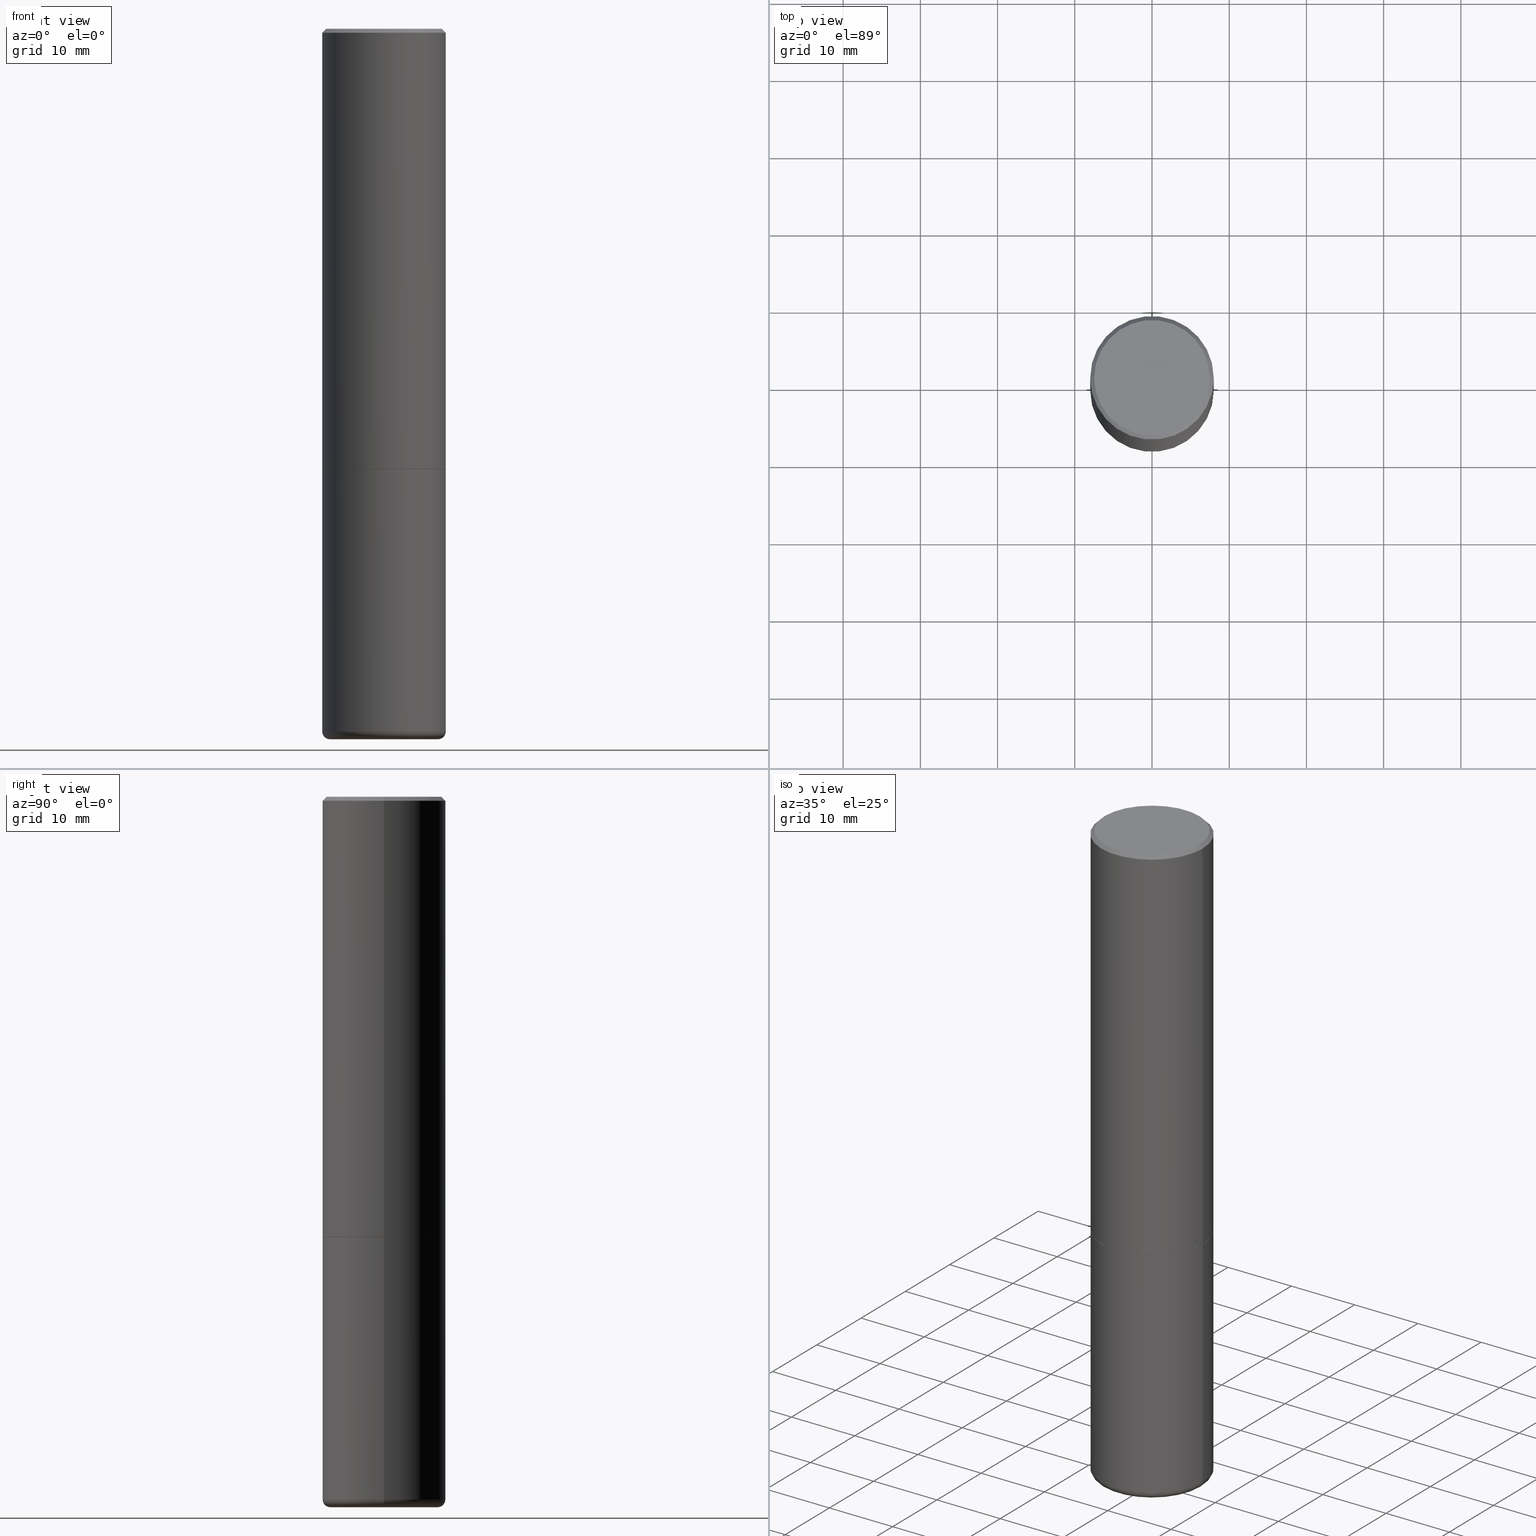
[diagram: canonical four-view strip — front | top / right | iso, engineering-drawing reading convention]
A machine part, canonical four-view strip (front | top / right | iso — engineering-drawing reading convention). The complete STEP part file that produces these views, byte-faithful:
ISO-10303-21;
HEADER;
FILE_DESCRIPTION (( 'STEP AP203' ),
    '1' );
FILE_NAME ('47047.STEP',
    '2024-03-05T14:55:19',
    ( '' ),
    ( '' ),
    'SwSTEP 2.0',
    'SolidWorks 2023',
    '' );
FILE_SCHEMA (( 'CONFIG_CONTROL_DESIGN' ));
ENDSEC;

DATA;
#1 = LOCAL_TIME ( 9, 55, 19.00000000000000000, #413 ) ;
#2 = FACE_OUTER_BOUND ( 'NONE', #357, .T. ) ;
#3 = EDGE_CURVE ( 'NONE', #184, #97, #279, .T. ) ;
#4 = DIRECTION ( 'NONE',  ( -1.000000000000000000, 6.982962677686266711E-15, 0.000000000000000000 ) ) ;
#5 = ADVANCED_FACE ( 'NONE', ( #145 ), #326, .T. ) ;
#6 = DIRECTION ( 'NONE',  ( 2.438088387897960049E-29, -3.491481338843145188E-15, -1.000000000000000000 ) ) ;
#7 = CLOSED_SHELL ( 'NONE', ( #57, #141, #54, #318, #283, #381 ) ) ;
#8 = ORIENTED_EDGE ( 'NONE', *, *, #82, .F. ) ;
#9 = DIRECTION ( 'NONE',  ( 0.000000000000000000, 0.000000000000000000, 1.000000000000000000 ) ) ;
#10 = ORIENTED_EDGE ( 'NONE', *, *, #82, .T. ) ;
#11 = EDGE_CURVE ( 'NONE', #14, #198, #113, .T. ) ;
#12 = ORIENTED_EDGE ( 'NONE', *, *, #188, .F. ) ;
#13 = AXIS2_PLACEMENT_3D ( 'NONE', #319, #157, #249 ) ;
#14 = VERTEX_POINT ( 'NONE', #410 ) ;
#15 = ORIENTED_EDGE ( 'NONE', *, *, #16, .F. ) ;
#16 = EDGE_CURVE ( 'NONE', #102, #393, #250, .T. ) ;
#17 = DIRECTION ( 'NONE',  ( 2.445468806185136597E-29, -3.491481338843145583E-15, -1.000000000000000000 ) ) ;
#18 = VECTOR ( 'NONE', #86, 39.37007874015748143 ) ;
#19 = CIRCLE ( 'NONE', #56, 0.2949499999999998234 ) ;
#20 = DIRECTION ( 'NONE',  ( 1.000000000000000000, -6.982962677686267499E-15, 0.000000000000000000 ) ) ;
#21 = CARTESIAN_POINT ( 'NONE',  ( 0.2949499999999998234, -2.127023677808859286E-15, 1.792775245842319231E-16 ) ) ;
#22 = EDGE_LOOP ( 'NONE', ( #8, #135, #195, #226 ) ) ;
#23 = COORDINATED_UNIVERSAL_TIME_OFFSET ( 5, 0, .BEHIND. ) ;
#24 = DIRECTION ( 'NONE',  ( 1.000000000000000000, -6.982962677686266711E-15, 0.000000000000000000 ) ) ;
#25 = CARTESIAN_POINT ( 'NONE',  ( 5.487632001079445967E-29, -7.834884124364017250E-15, -2.243999999999999773 ) ) ;
#26 = AXIS2_PLACEMENT_3D ( 'NONE', #414, #212, #155 ) ;
#27 = APPROVAL ( #42, 'UNSPECIFIED' ) ;
#28 = MANIFOLD_SOLID_BREP ( 'Body-Move/Copy2[1]', #7 ) ;
#29 = CARTESIAN_POINT ( 'NONE',  ( 5.487632001079445967E-29, -7.834884124364017250E-15, -2.243999999999999773 ) ) ;
#30 = EDGE_CURVE ( 'NONE', #198, #69, #308, .T. ) ;
#31 = CIRCLE ( 'NONE', #266, 0.03940000000000005997 ) ;
#32 = AXIS2_PLACEMENT_3D ( 'NONE', #411, #39, #169 ) ;
#33 = LOCAL_TIME ( 9, 55, 19.00000000000000000, #23 ) ;
#34 = EDGE_CURVE ( 'NONE', #38, #234, #85, .T. ) ;
#35 = DIRECTION ( 'NONE',  ( -2.445468806185136597E-29, 3.491481338843145583E-15, 1.000000000000000000 ) ) ;
#36 = ORIENTED_EDGE ( 'NONE', *, *, #73, .T. ) ;
#37 = TOROIDAL_SURFACE ( 'NONE', #13, 0.2755500000000000171, 0.03940000000000005997 ) ;
#38 = VERTEX_POINT ( 'NONE', #281 ) ;
#39 = DIRECTION ( 'NONE',  ( -2.445468806185136597E-29, 3.491481338843145583E-15, 1.000000000000000000 ) ) ;
#40 = ORIENTED_EDGE ( 'NONE', *, *, #34, .T. ) ;
#41 = ORIENTED_EDGE ( 'NONE', *, *, #396, .T. ) ;
#42 = APPROVAL_STATUS ( 'not_yet_approved' ) ;
#43 = AXIS2_PLACEMENT_3D ( 'NONE', #379, #222, #161 ) ;
#44 = APPROVAL_PERSON_ORGANIZATION ( #405, #219, #296 ) ;
#45 = ORIENTED_EDGE ( 'NONE', *, *, #355, .T. ) ;
#46 = CYLINDRICAL_SURFACE ( 'NONE', #191, 0.3149500000000000077 ) ;
#47 = EDGE_CURVE ( 'NONE', #38, #300, #31, .T. ) ;
#48 = DIRECTION ( 'NONE',  ( 1.000000000000000000, -6.982962677686266711E-15, 0.000000000000000000 ) ) ;
#49 = ORIENTED_EDGE ( 'NONE', *, *, #11, .T. ) ;
#50 = VECTOR ( 'NONE', #93, 39.37007874015748143 ) ;
#51 = DIRECTION ( 'NONE',  ( 2.438088387897960049E-29, -3.491481338843145188E-15, -1.000000000000000000 ) ) ;
#52 = CARTESIAN_POINT ( 'NONE',  ( 0.3149500000000002853, -1.003067673836246727E-14, -2.242999999999999883 ) ) ;
#53 = CARTESIAN_POINT ( 'NONE',  ( 0.3149500000000000077, -1.003416821970130712E-14, -2.243999999999999773 ) ) ;
#54 = ADVANCED_FACE ( 'NONE', ( #277 ), #248, .F. ) ;
#55 = CARTESIAN_POINT ( 'NONE',  ( -0.2949499999999998234, 2.094539655171995318E-15, 1.792775245842027353E-16 ) ) ;
#56 = AXIS2_PLACEMENT_3D ( 'NONE', #330, #170, #297 ) ;
#57 = ADVANCED_FACE ( 'NONE', ( #244 ), #120, .T. ) ;
#58 = CARTESIAN_POINT ( 'NONE',  ( 8.857488016002564476E-29, -1.264614540928987199E-14, -3.621999999999999886 ) ) ;
#59 = AXIS2_PLACEMENT_3D ( 'NONE', #149, #117, #182 ) ;
#60 = CYLINDRICAL_SURFACE ( 'NONE', #112, 0.3149500000000001743 ) ;
#61 = DIRECTION ( 'NONE',  ( -2.445468806185136597E-29, 3.491481338843145583E-15, 1.000000000000000000 ) ) ;
#62 = VERTEX_POINT ( 'NONE', #377 ) ;
#63 = FACE_OUTER_BOUND ( 'NONE', #333, .T. ) ;
#64 = ORIENTED_EDGE ( 'NONE', *, *, #321, .T. ) ;
#65 = PERSON_AND_ORGANIZATION ( #164, #239 ) ;
#66 = AXIS2_PLACEMENT_3D ( 'NONE', #412, #118, #20 ) ;
#67 = FACE_OUTER_BOUND ( 'NONE', #255, .T. ) ;
#68 = ORIENTED_EDGE ( 'NONE', *, *, #16, .T. ) ;
#69 = VERTEX_POINT ( 'NONE', #53 ) ;
#70 = PERSON_AND_ORGANIZATION_ROLE ( 'creator' ) ;
#71 = CARTESIAN_POINT ( 'NONE',  ( 0.3149500000000000077, -1.470786513987673949E-14, -3.582599999999999785 ) ) ;
#72 = ORIENTED_EDGE ( 'NONE', *, *, #278, .F. ) ;
#73 = EDGE_CURVE ( 'NONE', #69, #198, #156, .T. ) ;
#74 = APPLICATION_CONTEXT ( 'configuration controlled 3d designs of mechanical parts and assemblies' ) ;
#75 = CIRCLE ( 'NONE', #282, 0.3149500000000002853 ) ;
#76 = CC_DESIGN_APPROVAL ( #368, ( #124 ) ) ;
#77 = DIRECTION ( 'NONE',  ( 2.438088387897960049E-29, -3.491481338843145188E-15, -1.000000000000000000 ) ) ;
#78 = DESIGN_CONTEXT ( 'detailed design', #213, 'design' ) ;
#79 = DIRECTION ( 'NONE',  ( -2.445468806185136597E-29, 3.491481338843145583E-15, 1.000000000000000000 ) ) ;
#80 = DIRECTION ( 'NONE',  ( -2.445468806185136877E-29, 3.491481338843145188E-15, 1.000000000000000000 ) ) ;
#81 = DIRECTION ( 'NONE',  ( -2.445468806185136597E-29, 3.491481338843145583E-15, 1.000000000000000000 ) ) ;
#82 = EDGE_CURVE ( 'NONE', #234, #14, #176, .T. ) ;
#83 = CARTESIAN_POINT ( 'NONE',  ( 0.000000000000000000, 0.000000000000000000, 0.000000000000000000 ) ) ;
#84 = UNCERTAINTY_MEASURE_WITH_UNIT (LENGTH_MEASURE( 1.000000000000000082E-05 ), #100, 'distance_accuracy_value', 'NONE');
#85 = CIRCLE ( 'NONE', #214, 0.2755500000000000171 ) ;
#86 = DIRECTION ( 'NONE',  ( -0.7071067811865466846, 2.468850131082247989E-15, -0.7071067811865483499 ) ) ;
#87 = APPROVAL_ROLE ( '' ) ;
#88 = CARTESIAN_POINT ( 'NONE',  ( 0.2755500000000000171, -1.443273641037590422E-14, -3.582599999999999785 ) ) ;
#89 = APPROVAL_STATUS ( 'not_yet_approved' ) ;
#90 = CARTESIAN_POINT ( 'NONE',  ( -0.3139500000000000068, -5.598836751096959871E-15, -2.243999999999999773 ) ) ;
#91 = CIRCLE ( 'NONE', #150, 0.3149500000000000077 ) ;
#92 = CONICAL_SURFACE ( 'NONE', #247, 0.3139500000000000068, 0.7853981633975507526 ) ;
#93 = DIRECTION ( 'NONE',  ( -2.445468806185136877E-29, 3.491481338843145188E-15, 1.000000000000000000 ) ) ;
#94 = DIRECTION ( 'NONE',  ( -2.445468806185136597E-29, 3.491481338843145583E-15, 1.000000000000000000 ) ) ;
#95 =( GEOMETRIC_REPRESENTATION_CONTEXT ( 3 ) GLOBAL_UNCERTAINTY_ASSIGNED_CONTEXT ( ( #84 ) ) GLOBAL_UNIT_ASSIGNED_CONTEXT ( ( #100, #400, #267 ) ) REPRESENTATION_CONTEXT ( 'NONE', 'WORKASPACE' ) );
#96 = DIRECTION ( 'NONE',  ( -2.445468806185136597E-29, 3.491481338843145583E-15, 1.000000000000000000 ) ) ;
#97 = VERTEX_POINT ( 'NONE', #367 ) ;
#98 = CARTESIAN_POINT ( 'NONE',  ( 8.761136545038868759E-29, -1.250858104453945120E-14, -3.582599999999999785 ) ) ;
#99 = ORIENTED_EDGE ( 'NONE', *, *, #73, .F. ) ;
#100 =( CONVERSION_BASED_UNIT ( 'INCH', #232 ) LENGTH_UNIT ( ) NAMED_UNIT ( #385 ) );
#101 = CARTESIAN_POINT ( 'NONE',  ( -0.2755500000000000171, -1.047948579958296492E-14, -3.621999999999999886 ) ) ;
#102 = VERTEX_POINT ( 'NONE', #52 ) ;
#103 = APPROVAL_STATUS ( 'not_yet_approved' ) ;
#104 = AXIS2_PLACEMENT_3D ( 'NONE', #83, #246, #343 ) ;
#105 = CC_DESIGN_PERSON_AND_ORGANIZATION_ASSIGNMENT ( #238, #207, ( #124 ) ) ;
#106 = EDGE_LOOP ( 'NONE', ( #262, #189, #45, #165 ) ) ;
#107 = ADVANCED_FACE ( 'NONE', ( #187 ), #274, .F. ) ;
#108 = EDGE_LOOP ( 'NONE', ( #41, #49, #99, #372 ) ) ;
#109 = PERSON_AND_ORGANIZATION ( #164, #239 ) ;
#110 = CARTESIAN_POINT ( 'NONE',  ( -0.3139500000000000068, -5.604135205445183851E-15, -2.243999999999999773 ) ) ;
#111 = CARTESIAN_POINT ( 'NONE',  ( 5.487632001079445967E-29, -7.834884124364017250E-15, -2.243999999999999773 ) ) ;
#112 = AXIS2_PLACEMENT_3D ( 'NONE', #228, #61, #197 ) ;
#113 = LINE ( 'NONE', #186, #148 ) ;
#114 = CC_DESIGN_PERSON_AND_ORGANIZATION_ASSIGNMENT ( #401, #70, ( #223 ) ) ;
#115 = PERSON_AND_ORGANIZATION ( #164, #239 ) ;
#116 = EDGE_CURVE ( 'NONE', #97, #62, #275, .T. ) ;
#117 = DIRECTION ( 'NONE',  ( -2.445468806185136597E-29, 3.491481338843145583E-15, 1.000000000000000000 ) ) ;
#118 = DIRECTION ( 'NONE',  ( -2.445468806185136597E-29, 3.491481338843145583E-15, 1.000000000000000000 ) ) ;
#119 = SHAPE_DEFINITION_REPRESENTATION ( #268, #391 ) ;
#120 = CYLINDRICAL_SURFACE ( 'NONE', #104, 0.3149500000000000077 ) ;
#121 = CC_DESIGN_PERSON_AND_ORGANIZATION_ASSIGNMENT ( #128, #289, ( #287 ) ) ;
#122 = AXIS2_PLACEMENT_3D ( 'NONE', #98, #390, #295 ) ;
#123 = ORIENTED_EDGE ( 'NONE', *, *, #116, .T. ) ;
#124 = SECURITY_CLASSIFICATION ( '', '', #376 ) ;
#125 = ADVANCED_FACE ( 'NONE', ( #181 ), #407, .F. ) ;
#126 = AXIS2_PLACEMENT_3D ( 'NONE', #353, #96, #356 ) ;
#127 = CC_DESIGN_APPROVAL ( #219, ( #223 ) ) ;
#128 = PERSON_AND_ORGANIZATION ( #164, #239 ) ;
#129 = CALENDAR_DATE ( 2024, 5, 3 ) ;
#130 = CARTESIAN_POINT ( 'NONE',  ( 5.485186532273261485E-29, -7.831392643025175821E-15, -2.242999999999999883 ) ) ;
#131 = CARTESIAN_POINT ( 'NONE',  ( -0.3149500000000001743, 2.237854346276436774E-15, -1.549218606675783237E-29 ) ) ;
#132 = AXIS2_PLACEMENT_3D ( 'NONE', #404, #77, #206 ) ;
#133 = VERTEX_POINT ( 'NONE', #383 ) ;
#134 = DIRECTION ( 'NONE',  ( 1.000000000000000000, 0.000000000000000000, 0.000000000000000000 ) ) ;
#135 = ORIENTED_EDGE ( 'NONE', *, *, #188, .T. ) ;
#136 = APPLICATION_PROTOCOL_DEFINITION ( 'international standard', 'config_control_design', 1994, #74 ) ;
#137 = DATE_AND_TIME ( #129, #167 ) ;
#138 = EDGE_LOOP ( 'NONE', ( #370, #168 ) ) ;
#139 = AXIS2_PLACEMENT_3D ( 'NONE', #146, #51, #153 ) ;
#140 = LINE ( 'NONE', #386, #50 ) ;
#141 = ADVANCED_FACE ( 'NONE', ( #348 ), #37, .T. ) ;
#142 = ORIENTED_EDGE ( 'NONE', *, *, #34, .F. ) ;
#143 = FACE_OUTER_BOUND ( 'NONE', #399, .T. ) ;
#144 = FACE_OUTER_BOUND ( 'NONE', #22, .T. ) ;
#145 = FACE_OUTER_BOUND ( 'NONE', #331, .T. ) ;
#146 = CARTESIAN_POINT ( 'NONE',  ( 5.487632001079445967E-29, -7.834884124364017250E-15, -2.243999999999999773 ) ) ;
#147 = DATE_AND_TIME ( #314, #1 ) ;
#148 = VECTOR ( 'NONE', #80, 39.37007874015748143 ) ;
#149 = CARTESIAN_POINT ( 'NONE',  ( -4.384175940207923203E-45, 6.259441315597878405E-31, 1.792775245842172799E-16 ) ) ;
#150 = AXIS2_PLACEMENT_3D ( 'NONE', #261, #225, #323 ) ;
#151 = DIRECTION ( 'NONE',  ( -6.982962677686266711E-15, -1.000000000000000000, 3.491481338843145583E-15 ) ) ;
#152 = CYLINDRICAL_SURFACE ( 'NONE', #32, 0.3149500000000001743 ) ;
#153 = DIRECTION ( 'NONE',  ( -1.000000000000000000, 6.982962677686265922E-15, -4.876176775795935793E-29 ) ) ;
#154 = CALENDAR_DATE ( 2024, 5, 3 ) ;
#155 = DIRECTION ( 'NONE',  ( 1.000000000000000000, -6.982962677686266711E-15, 0.000000000000000000 ) ) ;
#156 = CIRCLE ( 'NONE', #26, 0.3149500000000000077 ) ;
#157 = DIRECTION ( 'NONE',  ( -2.445468806185136597E-29, 3.491481338843145583E-15, 1.000000000000000000 ) ) ;
#158 = DATE_TIME_ROLE ( 'classification_date' ) ;
#159 = DIRECTION ( 'NONE',  ( 1.000000000000000000, -6.982962677686268288E-15, 0.000000000000000000 ) ) ;
#160 = DATE_AND_TIME ( #257, #178 ) ;
#161 = DIRECTION ( 'NONE',  ( 1.000000000000000000, -6.982962677686264344E-15, 0.000000000000000000 ) ) ;
#162 = DIRECTION ( 'NONE',  ( 1.000000000000000000, -6.982962677686264344E-15, 0.000000000000000000 ) ) ;
#163 = DIRECTION ( 'NONE',  ( -2.438088387897960049E-29, 3.491481338843145188E-15, 1.000000000000000000 ) ) ;
#164 = PERSON ( 'UNSPECIFIED', 'UNSPECIFIED', 'UNSPECIFIED', ('UNSPECIFIED'), ('UNSPECIFIED'), ('UNSPECIFIED') ) ;
#165 = ORIENTED_EDGE ( 'NONE', *, *, #217, .F. ) ;
#166 = CARTESIAN_POINT ( 'NONE',  ( 8.857488016002564476E-29, -1.264614540928987199E-14, -3.621999999999999886 ) ) ;
#167 = LOCAL_TIME ( 9, 55, 19.00000000000000000, #316 ) ;
#168 = ORIENTED_EDGE ( 'NONE', *, *, #278, .T. ) ;
#169 = DIRECTION ( 'NONE',  ( 1.000000000000000000, -6.982962677686265922E-15, 4.876176775795935232E-29 ) ) ;
#170 = DIRECTION ( 'NONE',  ( -2.445468806185136597E-29, 3.491481338843145583E-15, 1.000000000000000000 ) ) ;
#171 = ORIENTED_EDGE ( 'NONE', *, *, #3, .T. ) ;
#172 = CC_DESIGN_PERSON_AND_ORGANIZATION_ASSIGNMENT ( #65, #263, ( #341 ) ) ;
#173 = DIRECTION ( 'NONE',  ( 1.000000000000000000, -6.982962677686264344E-15, 0.000000000000000000 ) ) ;
#174 = ORIENTED_EDGE ( 'NONE', *, *, #3, .F. ) ;
#175 =( LENGTH_UNIT ( ) NAMED_UNIT ( * ) SI_UNIT ( $, .METRE. ) );
#176 = CIRCLE ( 'NONE', #397, 0.03940000000000005997 ) ;
#177 = CARTESIAN_POINT ( 'NONE',  ( 8.761136545038868759E-29, -1.250858104453945120E-14, -3.582599999999999785 ) ) ;
#178 = LOCAL_TIME ( 9, 55, 19.00000000000000000, #322 ) ;
#179 = VERTEX_POINT ( 'NONE', #90 ) ;
#180 = CARTESIAN_POINT ( 'NONE',  ( 4.890937612370289799E-31, -6.982962677686315028E-17, -0.02000000000000006981 ) ) ;
#181 = FACE_OUTER_BOUND ( 'NONE', #291, .T. ) ;
#182 = DIRECTION ( 'NONE',  ( 1.000000000000000000, -6.982962677686267499E-15, 4.874125435057324435E-29 ) ) ;
#183 = EDGE_CURVE ( 'NONE', #133, #179, #254, .T. ) ;
#184 = VERTEX_POINT ( 'NONE', #55 ) ;
#185 = AXIS2_PLACEMENT_3D ( 'NONE', #307, #17, #304 ) ;
#186 = CARTESIAN_POINT ( 'NONE',  ( -0.3149500000000000077, 2.237854346276435590E-15, -1.549218606675782676E-29 ) ) ;
#187 = FACE_OUTER_BOUND ( 'NONE', #138, .T. ) ;
#188 = EDGE_CURVE ( 'NONE', #234, #38, #375, .T. ) ;
#189 = ORIENTED_EDGE ( 'NONE', *, *, #389, .T. ) ;
#190 = AXIS2_PLACEMENT_3D ( 'NONE', #325, #9, #134 ) ;
#191 = AXIS2_PLACEMENT_3D ( 'NONE', #240, #365, #201 ) ;
#192 = ORIENTED_EDGE ( 'NONE', *, *, #395, .F. ) ;
#193 = ADVANCED_FACE ( 'NONE', ( #320 ), #92, .T. ) ;
#194 = ORIENTED_EDGE ( 'NONE', *, *, #30, .F. ) ;
#195 = ORIENTED_EDGE ( 'NONE', *, *, #47, .T. ) ;
#196 = AXIS2_PLACEMENT_3D ( 'NONE', #58, #350, #159 ) ;
#197 = DIRECTION ( 'NONE',  ( 1.000000000000000000, -6.982962677686265922E-15, 4.876176775795935232E-29 ) ) ;
#198 = VERTEX_POINT ( 'NONE', #286 ) ;
#199 = CALENDAR_DATE ( 2024, 5, 3 ) ;
#200 = EDGE_LOOP ( 'NONE', ( #40, #10, #362, #265 ) ) ;
#201 = DIRECTION ( 'NONE',  ( 1.000000000000000000, -6.982962677686266711E-15, 4.876176775795936353E-29 ) ) ;
#202 = ORIENTED_EDGE ( 'NONE', *, *, #116, .F. ) ;
#203 = PERSON_AND_ORGANIZATION_ROLE ( 'design_supplier' ) ;
#204 = AXIS2_PLACEMENT_3D ( 'NONE', #180, #79, #338 ) ;
#205 = CARTESIAN_POINT ( 'NONE',  ( 0.3149500000000000077, -2.230543471175007450E-15, -0.02000000000000006981 ) ) ;
#206 = DIRECTION ( 'NONE',  ( -1.000000000000000000, 6.982962677686265922E-15, -4.876176775795935793E-29 ) ) ;
#207 = PERSON_AND_ORGANIZATION_ROLE ( 'classification_officer' ) ;
#208 = ADVANCED_FACE ( 'NONE', ( #2 ), #327, .T. ) ;
#209 = DIRECTION ( 'NONE',  ( -2.445468806185136597E-29, 3.491481338843145583E-15, 1.000000000000000000 ) ) ;
#210 = DATE_AND_TIME ( #154, #33 ) ;
#211 = DIRECTION ( 'NONE',  ( -2.445468806185136877E-29, 3.491481338843145188E-15, 1.000000000000000000 ) ) ;
#212 = DIRECTION ( 'NONE',  ( -2.445468806185136597E-29, 3.491481338843145583E-15, 1.000000000000000000 ) ) ;
#213 = APPLICATION_CONTEXT ( 'configuration controlled 3d designs of mechanical parts and assemblies' ) ;
#214 = AXIS2_PLACEMENT_3D ( 'NONE', #317, #209, #241 ) ;
#215 = AXIS2_PLACEMENT_3D ( 'NONE', #166, #6, #394 ) ;
#216 = CARTESIAN_POINT ( 'NONE',  ( -0.3149500000000000077, 2.129454468560426573E-15, -0.02000000000000006981 ) ) ;
#217 = EDGE_CURVE ( 'NONE', #393, #102, #75, .T. ) ;
#218 = ORIENTED_EDGE ( 'NONE', *, *, #183, .F. ) ;
#219 = APPROVAL ( #103, 'UNSPECIFIED' ) ;
#220 = EDGE_CURVE ( 'NONE', #14, #300, #91, .T. ) ;
#221 = AXIS2_PLACEMENT_3D ( 'NONE', #25, #163, #417 ) ;
#222 = DIRECTION ( 'NONE',  ( -2.445468806185136597E-29, 3.491481338843145583E-15, 1.000000000000000000 ) ) ;
#223 = PRODUCT_DEFINITION_FORMATION_WITH_SPECIFIED_SOURCE ( 'ANY', '', #341, .NOT_KNOWN. ) ;
#224 = ORIENTED_EDGE ( 'NONE', *, *, #11, .F. ) ;
#225 = DIRECTION ( 'NONE',  ( -2.445468806185136597E-29, 3.491481338843145583E-15, 1.000000000000000000 ) ) ;
#226 = ORIENTED_EDGE ( 'NONE', *, *, #220, .F. ) ;
#227 = PRODUCT_RELATED_PRODUCT_CATEGORY ( 'detail', '', ( #341 ) ) ;
#228 = CARTESIAN_POINT ( 'NONE',  ( 0.000000000000000000, 0.000000000000000000, 0.000000000000000000 ) ) ;
#229 = AXIS2_PLACEMENT_3D ( 'NONE', #111, #345, #48 ) ;
#230 = EDGE_LOOP ( 'NONE', ( #224, #358, #288, #194 ) ) ;
#231 = AXIS2_PLACEMENT_3D ( 'NONE', #384, #352, #4 ) ;
#232 = LENGTH_MEASURE_WITH_UNIT ( LENGTH_MEASURE( 0.02539999999999999897 ), #175 );
#233 = ORIENTED_EDGE ( 'NONE', *, *, #355, .F. ) ;
#234 = VERTEX_POINT ( 'NONE', #101 ) ;
#235 = FACE_OUTER_BOUND ( 'NONE', #230, .T. ) ;
#236 = DIRECTION ( 'NONE',  ( -1.000000000000000000, 7.105427357601014480E-15, 0.000000000000000000 ) ) ;
#237 = EDGE_CURVE ( 'NONE', #300, #69, #140, .T. ) ;
#238 = PERSON_AND_ORGANIZATION ( #164, #239 ) ;
#239 = ORGANIZATION ( 'UNSPECIFIED', 'UNSPECIFIED', '' ) ;
#240 = CARTESIAN_POINT ( 'NONE',  ( 0.000000000000000000, 0.000000000000000000, 0.000000000000000000 ) ) ;
#241 = DIRECTION ( 'NONE',  ( 1.000000000000000000, -6.982962677686268288E-15, 0.000000000000000000 ) ) ;
#242 = APPROVAL_DATE_TIME ( #147, #368 ) ;
#243 = LINE ( 'NONE', #371, #344 ) ;
#244 = FACE_OUTER_BOUND ( 'NONE', #108, .T. ) ;
#245 = CC_DESIGN_PERSON_AND_ORGANIZATION_ASSIGNMENT ( #109, #203, ( #223 ) ) ;
#246 = DIRECTION ( 'NONE',  ( -2.445468806185136597E-29, 3.491481338843145583E-15, 1.000000000000000000 ) ) ;
#247 = AXIS2_PLACEMENT_3D ( 'NONE', #29, #416, #162 ) ;
#248 = PLANE ( 'NONE',  #139 ) ;
#249 = DIRECTION ( 'NONE',  ( 1.000000000000000000, -6.982962677686268288E-15, 4.883557194083114022E-29 ) ) ;
#250 = CIRCLE ( 'NONE', #66, 0.3149500000000002853 ) ;
#251 = AXIS2_PLACEMENT_3D ( 'NONE', #177, #81, #271 ) ;
#252 = CC_DESIGN_SECURITY_CLASSIFICATION ( #124, ( #223 ) ) ;
#253 = ADVANCED_FACE ( 'NONE', ( #67 ), #380, .T. ) ;
#254 = CIRCLE ( 'NONE', #43, 0.3139500000000000068 ) ;
#255 = EDGE_LOOP ( 'NONE', ( #269, #294, #15, #233 ) ) ;
#256 = DIRECTION ( 'NONE',  ( -2.445468806185136877E-29, 3.491481338843145188E-15, 1.000000000000000000 ) ) ;
#257 = CALENDAR_DATE ( 2024, 5, 3 ) ;
#258 = ORIENTED_EDGE ( 'NONE', *, *, #321, .F. ) ;
#259 = MECHANICAL_CONTEXT ( 'NONE', #74, 'mechanical' ) ;
#260 = APPROVAL_DATE_TIME ( #293, #219 ) ;
#261 = CARTESIAN_POINT ( 'NONE',  ( 8.761136545038868759E-29, -1.250858104453945120E-14, -3.582599999999999785 ) ) ;
#262 = ORIENTED_EDGE ( 'NONE', *, *, #302, .F. ) ;
#263 = PERSON_AND_ORGANIZATION_ROLE ( 'design_owner' ) ;
#264 = COORDINATED_UNIVERSAL_TIME_OFFSET ( 5, 0, .BEHIND. ) ;
#265 = ORIENTED_EDGE ( 'NONE', *, *, #47, .F. ) ;
#266 = AXIS2_PLACEMENT_3D ( 'NONE', #88, #151, #347 ) ;
#267 =( NAMED_UNIT ( * ) SI_UNIT ( $, .STERADIAN. ) SOLID_ANGLE_UNIT ( ) );
#268 = PRODUCT_DEFINITION_SHAPE ( 'NONE', 'NONE',  #287 ) ;
#269 = ORIENTED_EDGE ( 'NONE', *, *, #183, .T. ) ;
#270 = PLANE ( 'NONE',  #215 ) ;
#271 = DIRECTION ( 'NONE',  ( 1.000000000000000000, -6.982962677686268288E-15, 4.883557194083114022E-29 ) ) ;
#272 = ADVANCED_FACE ( 'NONE', ( #63 ), #60, .T. ) ;
#273 = DIRECTION ( 'NONE',  ( 7.105427357601001859E-15, 1.000000000000000000, -3.491481338843145583E-15 ) ) ;
#274 = PLANE ( 'NONE',  #132 ) ;
#275 = CIRCLE ( 'NONE', #387, 0.3149500000000000077 ) ;
#276 = DIRECTION ( 'NONE',  ( 0.7071067811866199593, -2.468850131083015945E-15, 0.7071067811864750752 ) ) ;
#277 = FACE_OUTER_BOUND ( 'NONE', #303, .T. ) ;
#278 = EDGE_CURVE ( 'NONE', #313, #184, #19, .T. ) ;
#279 = LINE ( 'NONE', #216, #18 ) ;
#280 = APPROVAL_DATE_TIME ( #137, #27 ) ;
#281 = CARTESIAN_POINT ( 'NONE',  ( 0.2755500000000000171, -1.457030077512632343E-14, -3.621999999999999886 ) ) ;
#282 = AXIS2_PLACEMENT_3D ( 'NONE', #130, #94, #306 ) ;
#283 = ADVANCED_FACE ( 'NONE', ( #144 ), #408, .T. ) ;
#284 = DATE_TIME_ROLE ( 'creation_date' ) ;
#285 = VECTOR ( 'NONE', #276, 39.37007874015748143 ) ;
#286 = CARTESIAN_POINT ( 'NONE',  ( -0.3149500000000000077, -7.933878238175299817E-15, -2.243999999999999773 ) ) ;
#287 = PRODUCT_DEFINITION ( 'UNKNOWN', '', #223, #78 ) ;
#288 = ORIENTED_EDGE ( 'NONE', *, *, #237, .T. ) ;
#289 = PERSON_AND_ORGANIZATION_ROLE ( 'creator' ) ;
#290 = VECTOR ( 'NONE', #406, 39.37007874015748143 ) ;
#291 = EDGE_LOOP ( 'NONE', ( #218, #388 ) ) ;
#292 = LINE ( 'NONE', #131, #349 ) ;
#293 = DATE_AND_TIME ( #199, #329 ) ;
#294 = ORIENTED_EDGE ( 'NONE', *, *, #302, .T. ) ;
#295 = DIRECTION ( 'NONE',  ( 1.000000000000000000, -6.982962677686263555E-15, 0.000000000000000000 ) ) ;
#296 = APPROVAL_ROLE ( '' ) ;
#297 = DIRECTION ( 'NONE',  ( 1.000000000000000000, -6.982962677686267499E-15, 4.874125435057324435E-29 ) ) ;
#298 = ORIENTED_EDGE ( 'NONE', *, *, #395, .T. ) ;
#299 = CARTESIAN_POINT ( 'NONE',  ( 5.487632001079445967E-29, -7.834884124364017250E-15, -2.243999999999999773 ) ) ;
#300 = VERTEX_POINT ( 'NONE', #71 ) ;
#301 = CIRCLE ( 'NONE', #122, 0.3149500000000000077 ) ;
#302 = EDGE_CURVE ( 'NONE', #179, #393, #402, .T. ) ;
#303 = EDGE_LOOP ( 'NONE', ( #36, #335 ) ) ;
#304 = DIRECTION ( 'NONE',  ( -1.000000000000000000, 6.982962677686266711E-15, 0.000000000000000000 ) ) ;
#305 = LINE ( 'NONE', #312, #285 ) ;
#306 = DIRECTION ( 'NONE',  ( 1.000000000000000000, -6.982962677686267499E-15, 0.000000000000000000 ) ) ;
#307 = CARTESIAN_POINT ( 'NONE',  ( 4.890937612370289799E-31, -6.982962677686315028E-17, -0.02000000000000006981 ) ) ;
#308 = CIRCLE ( 'NONE', #229, 0.3149500000000000077 ) ;
#309 = VECTOR ( 'NONE', #369, 39.37007874015748143 ) ;
#310 = MANIFOLD_SOLID_BREP ( 'Body-Move/Copy2[2]', #366 ) ;
#311 = CC_DESIGN_APPROVAL ( #27, ( #287 ) ) ;
#312 = CARTESIAN_POINT ( 'NONE',  ( 0.3139500000000000068, -1.002718525702362111E-14, -2.243999999999999773 ) ) ;
#313 = VERTEX_POINT ( 'NONE', #21 ) ;
#314 = CALENDAR_DATE ( 2024, 5, 3 ) ;
#315 = CARTESIAN_POINT ( 'NONE',  ( 4.890937612370289799E-31, -6.982962677686315028E-17, -0.02000000000000006981 ) ) ;
#316 = COORDINATED_UNIVERSAL_TIME_OFFSET ( 5, 0, .BEHIND. ) ;
#317 = CARTESIAN_POINT ( 'NONE',  ( 8.857488016002564476E-29, -1.264614540928987199E-14, -3.621999999999999886 ) ) ;
#318 = ADVANCED_FACE ( 'NONE', ( #235 ), #46, .T. ) ;
#319 = CARTESIAN_POINT ( 'NONE',  ( 8.761136545038868759E-29, -1.250858104453945120E-14, -3.582599999999999785 ) ) ;
#320 = FACE_OUTER_BOUND ( 'NONE', #106, .T. ) ;
#321 = EDGE_CURVE ( 'NONE', #313, #62, #409, .T. ) ;
#322 = COORDINATED_UNIVERSAL_TIME_OFFSET ( 5, 0, .BEHIND. ) ;
#323 = DIRECTION ( 'NONE',  ( 1.000000000000000000, -6.982962677686263555E-15, 0.000000000000000000 ) ) ;
#324 = ORIENTED_EDGE ( 'NONE', *, *, #339, .T. ) ;
#325 = CARTESIAN_POINT ( 'NONE',  ( 0.000000000000000000, 0.000000000000000000, 0.000000000000000000 ) ) ;
#326 = CONICAL_SURFACE ( 'NONE', #185, 0.3149500000000000077, 0.7853981633974471688 ) ;
#327 = CONICAL_SURFACE ( 'NONE', #231, 0.3149500000000000077, 0.7853981633974471688 ) ;
#328 = ORIENTED_EDGE ( 'NONE', *, *, #339, .F. ) ;
#329 = LOCAL_TIME ( 9, 55, 19.00000000000000000, #264 ) ;
#330 = CARTESIAN_POINT ( 'NONE',  ( -4.384175940207923203E-45, 6.259441315597878405E-31, 1.792775245842172799E-16 ) ) ;
#331 = EDGE_LOOP ( 'NONE', ( #72, #64, #324, #174 ) ) ;
#332 = CARTESIAN_POINT ( 'NONE',  ( -0.3149500000000002853, -1.712756788624580222E-15, -2.242999999999999883 ) ) ;
#333 = EDGE_LOOP ( 'NONE', ( #192, #340, #398, #202 ) ) ;
#334 = PERSON_AND_ORGANIZATION ( #164, #239 ) ;
#335 = ORIENTED_EDGE ( 'NONE', *, *, #30, .T. ) ;
#336 = AXIS2_PLACEMENT_3D ( 'NONE', #299, #35, #173 ) ;
#337 = DIRECTION ( 'NONE',  ( -2.445468806185136597E-29, 3.491481338843145583E-15, 1.000000000000000000 ) ) ;
#338 = DIRECTION ( 'NONE',  ( 1.000000000000000000, -6.982962677686266711E-15, 0.000000000000000000 ) ) ;
#339 = EDGE_CURVE ( 'NONE', #62, #97, #359, .T. ) ;
#340 = ORIENTED_EDGE ( 'NONE', *, *, #217, .T. ) ;
#341 = PRODUCT ( '47047', '47047', '', ( #259 ) ) ;
#342 = FACE_OUTER_BOUND ( 'NONE', #392, .T. ) ;
#343 = DIRECTION ( 'NONE',  ( 1.000000000000000000, -6.982962677686266711E-15, 4.876176775795936353E-29 ) ) ;
#344 = VECTOR ( 'NONE', #211, 39.37007874015748143 ) ;
#345 = DIRECTION ( 'NONE',  ( -2.445468806185136597E-29, 3.491481338843145583E-15, 1.000000000000000000 ) ) ;
#346 = APPROVAL_ROLE ( '' ) ;
#347 = DIRECTION ( 'NONE',  ( 1.000000000000000000, -6.982962677686267499E-15, 0.000000000000000000 ) ) ;
#348 = FACE_OUTER_BOUND ( 'NONE', #200, .T. ) ;
#349 = VECTOR ( 'NONE', #256, 39.37007874015748143 ) ;
#350 = DIRECTION ( 'NONE',  ( -2.445468806185136597E-29, 3.491481338843145583E-15, 1.000000000000000000 ) ) ;
#351 = EDGE_CURVE ( 'NONE', #184, #313, #418, .T. ) ;
#352 = DIRECTION ( 'NONE',  ( 2.445468806185136597E-29, -3.491481338843145583E-15, -1.000000000000000000 ) ) ;
#353 = CARTESIAN_POINT ( 'NONE',  ( 5.487632001079445967E-29, -7.834884124364017250E-15, -2.243999999999999773 ) ) ;
#354 = APPROVAL_PERSON_ORGANIZATION ( #334, #27, #346 ) ;
#355 = EDGE_CURVE ( 'NONE', #133, #102, #305, .T. ) ;
#356 = DIRECTION ( 'NONE',  ( 1.000000000000000000, -6.982962677686264344E-15, 0.000000000000000000 ) ) ;
#357 = EDGE_LOOP ( 'NONE', ( #258, #360, #171, #123 ) ) ;
#358 = ORIENTED_EDGE ( 'NONE', *, *, #220, .T. ) ;
#359 = CIRCLE ( 'NONE', #204, 0.3149500000000000077 ) ;
#360 = ORIENTED_EDGE ( 'NONE', *, *, #351, .F. ) ;
#361 = EDGE_CURVE ( 'NONE', #102, #62, #243, .T. ) ;
#362 = ORIENTED_EDGE ( 'NONE', *, *, #396, .F. ) ;
#363 = APPLICATION_PROTOCOL_DEFINITION ( 'international standard', 'config_control_design', 1994, #213 ) ;
#364 = ORIENTED_EDGE ( 'NONE', *, *, #361, .F. ) ;
#365 = DIRECTION ( 'NONE',  ( -2.445468806185136597E-29, 3.491481338843145583E-15, 1.000000000000000000 ) ) ;
#366 = CLOSED_SHELL ( 'NONE', ( #253, #378, #5, #208, #272, #193, #125, #107 ) ) ;
#367 = CARTESIAN_POINT ( 'NONE',  ( -0.3149500000000000077, 2.129454468560426573E-15, -0.02000000000000006981 ) ) ;
#368 = APPROVAL ( #89, 'UNSPECIFIED' ) ;
#369 = DIRECTION ( 'NONE',  ( 0.7071067811865466846, -7.319954787623252890E-15, -0.7071067811865483499 ) ) ;
#370 = ORIENTED_EDGE ( 'NONE', *, *, #351, .T. ) ;
#371 = CARTESIAN_POINT ( 'NONE',  ( 0.3149500000000001743, -2.199284095337290660E-15, 1.535751875536930690E-29 ) ) ;
#372 = ORIENTED_EDGE ( 'NONE', *, *, #237, .F. ) ;
#373 = CC_DESIGN_DATE_AND_TIME_ASSIGNMENT ( #160, #284, ( #287 ) ) ;
#374 = CARTESIAN_POINT ( 'NONE',  ( -0.2755500000000000171, -1.055068053615249541E-14, -3.582599999999999785 ) ) ;
#375 = CIRCLE ( 'NONE', #196, 0.2755500000000000171 ) ;
#376 = SECURITY_CLASSIFICATION_LEVEL ( 'unclassified' ) ;
#377 = CARTESIAN_POINT ( 'NONE',  ( 0.3149500000000000077, -2.230543471175007450E-15, -0.02000000000000006981 ) ) ;
#378 = ADVANCED_FACE ( 'NONE', ( #342 ), #152, .T. ) ;
#379 = CARTESIAN_POINT ( 'NONE',  ( 5.487632001079445967E-29, -7.834884124364017250E-15, -2.243999999999999773 ) ) ;
#380 = CONICAL_SURFACE ( 'NONE', #126, 0.3139500000000000068, 0.7853981633975507526 ) ;
#381 = ADVANCED_FACE ( 'NONE', ( #143 ), #270, .T. ) ;
#382 = APPROVAL_PERSON_ORGANIZATION ( #115, #368, #87 ) ;
#383 = CARTESIAN_POINT ( 'NONE',  ( 0.3139500000000000068, -1.002718525702362111E-14, -2.243999999999999773 ) ) ;
#384 = CARTESIAN_POINT ( 'NONE',  ( 4.890937612370289799E-31, -6.982962677686315028E-17, -0.02000000000000006981 ) ) ;
#385 = DIMENSIONAL_EXPONENTS ( 1.000000000000000000, 0.000000000000000000, 0.000000000000000000, 0.000000000000000000, 0.000000000000000000, 0.000000000000000000, 0.000000000000000000 ) ;
#386 = CARTESIAN_POINT ( 'NONE',  ( 0.3149500000000000077, -2.199284095337289871E-15, 1.535751875536930130E-29 ) ) ;
#387 = AXIS2_PLACEMENT_3D ( 'NONE', #315, #337, #24 ) ;
#388 = ORIENTED_EDGE ( 'NONE', *, *, #389, .F. ) ;
#389 = EDGE_CURVE ( 'NONE', #179, #133, #415, .T. ) ;
#390 = DIRECTION ( 'NONE',  ( -2.445468806185136597E-29, 3.491481338843145583E-15, 1.000000000000000000 ) ) ;
#391 = ADVANCED_BREP_SHAPE_REPRESENTATION ( '47047', ( #28, #310, #190 ), #95 ) ;
#392 = EDGE_LOOP ( 'NONE', ( #68, #298, #328, #364 ) ) ;
#393 = VERTEX_POINT ( 'NONE', #332 ) ;
#394 = DIRECTION ( 'NONE',  ( -1.000000000000000000, 6.982962677686265922E-15, -4.876176775795935793E-29 ) ) ;
#395 = EDGE_CURVE ( 'NONE', #393, #97, #292, .T. ) ;
#396 = EDGE_CURVE ( 'NONE', #300, #14, #301, .T. ) ;
#397 = AXIS2_PLACEMENT_3D ( 'NONE', #374, #273, #236 ) ;
#398 = ORIENTED_EDGE ( 'NONE', *, *, #361, .T. ) ;
#399 = EDGE_LOOP ( 'NONE', ( #142, #12 ) ) ;
#400 =( NAMED_UNIT ( * ) PLANE_ANGLE_UNIT ( ) SI_UNIT ( $, .RADIAN. ) );
#401 = PERSON_AND_ORGANIZATION ( #164, #239 ) ;
#402 = LINE ( 'NONE', #110, #290 ) ;
#403 = CC_DESIGN_DATE_AND_TIME_ASSIGNMENT ( #210, #158, ( #124 ) ) ;
#404 = CARTESIAN_POINT ( 'NONE',  ( 2.059624841783562880E-15, 0.2949499999999998234, -9.401736585996764239E-16 ) ) ;
#405 = PERSON_AND_ORGANIZATION ( #164, #239 ) ;
#406 = DIRECTION ( 'NONE',  ( -0.7071067811866199593, 7.493145998870616062E-15, 0.7071067811864750752 ) ) ;
#407 = PLANE ( 'NONE',  #221 ) ;
#408 = TOROIDAL_SURFACE ( 'NONE', #251, 0.2755500000000000171, 0.03940000000000005997 ) ;
#409 = LINE ( 'NONE', #205, #309 ) ;
#410 = CARTESIAN_POINT ( 'NONE',  ( -0.3149500000000000077, -1.027072669826301679E-14, -3.582599999999999785 ) ) ;
#411 = CARTESIAN_POINT ( 'NONE',  ( 0.000000000000000000, 0.000000000000000000, 0.000000000000000000 ) ) ;
#412 = CARTESIAN_POINT ( 'NONE',  ( 5.485186532273261485E-29, -7.831392643025175821E-15, -2.242999999999999883 ) ) ;
#413 = COORDINATED_UNIVERSAL_TIME_OFFSET ( 5, 0, .BEHIND. ) ;
#414 = CARTESIAN_POINT ( 'NONE',  ( 5.487632001079445967E-29, -7.834884124364017250E-15, -2.243999999999999773 ) ) ;
#415 = CIRCLE ( 'NONE', #336, 0.3139500000000000068 ) ;
#416 = DIRECTION ( 'NONE',  ( -2.445468806185136597E-29, 3.491481338843145583E-15, 1.000000000000000000 ) ) ;
#417 = DIRECTION ( 'NONE',  ( 1.000000000000000000, -6.982962677686265922E-15, 4.876176775795935793E-29 ) ) ;
#418 = CIRCLE ( 'NONE', #59, 0.2949499999999998234 ) ;
ENDSEC;
END-ISO-10303-21;
